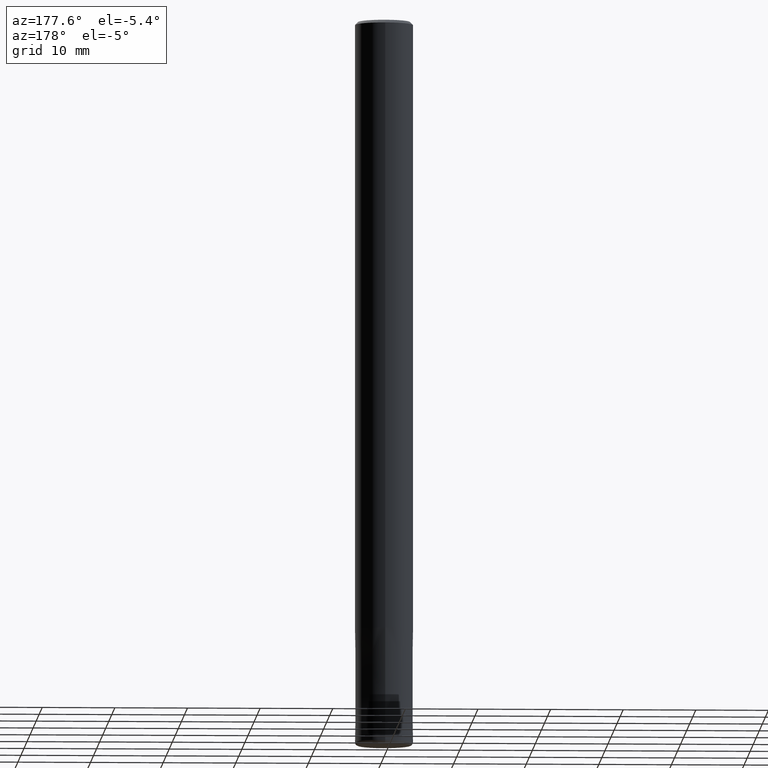
[diagram: clean part render]
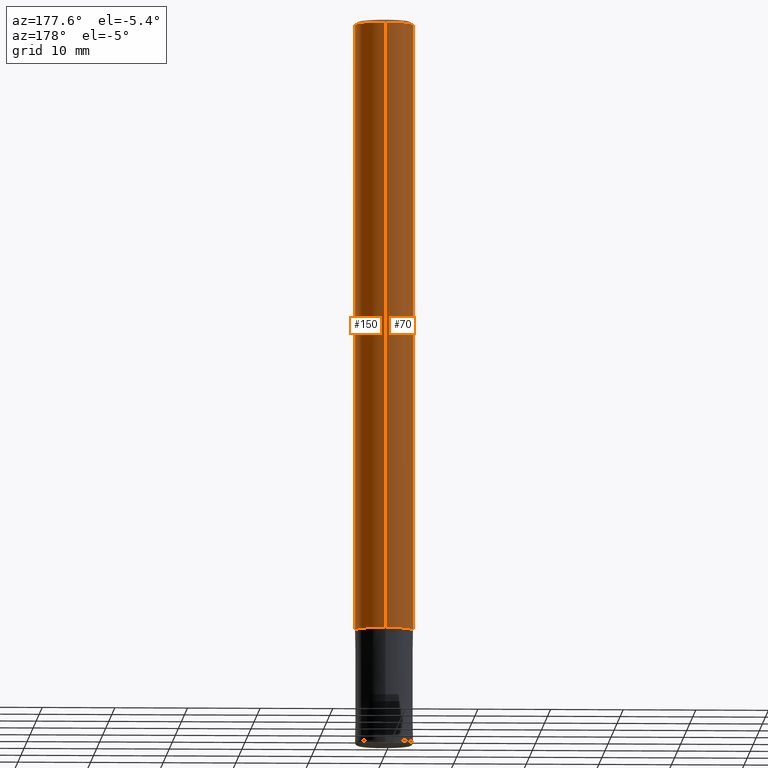
[diagram: same view with one multi-face feature highlighted, each face labeled with its STEP entity id]
A machine part, auxiliary view. The highlighted faces form ONE feature: a constant-radius fillet chain: 2 tangent blend faces with common blend radius 4 mm. The faces share edges in the B-rep.
Their STEP definitions:
[1] entity #150 (Cylinder):
#68=EDGE_CURVE('',#92,#152,#172,.T.);
#74=VERTEX_POINT('',#179);
#82=EDGE_CURVE('',#116,#74,#189,.T.);
#92=VERTEX_POINT('',#201);
#94=EDGE_CURVE('',#152,#116,#203,.T.);
#100=EDGE_CURVE('',#92,#74,#209,.T.);
#116=VERTEX_POINT('',#225);
#150=ADVANCED_FACE('',(#265),#266,.T.);
#152=VERTEX_POINT('',#268);
#172=LINE('',#279,#280);
#179=CARTESIAN_POINT('',(4.89842541528951E-016,-4.0,-0.400000000000006));
#189=LINE('',#299,#300);
#201=CARTESIAN_POINT('',(0.0,4.0,-0.400000000000006));
#203=CIRCLE('',#314,4.0);
#209=CIRCLE('',#322,4.0);
#225=CARTESIAN_POINT('',(4.89842541528951E-016,-4.0,-84.0));
#265=FACE_OUTER_BOUND('',#396,.T.);
#266=CYLINDRICAL_SURFACE('',#397,4.0);
#268=CARTESIAN_POINT('',(0.0,4.0,-84.0));
#279=CARTESIAN_POINT('',(-4.89842541528951E-016,4.0,-42.2));
#280=VECTOR('',#403,1.0);
#299=CARTESIAN_POINT('',(4.89842541528951E-016,-4.0,-42.2));
#300=VECTOR('',#431,1.0);
#314=AXIS2_PLACEMENT_3D('',#441,#442,#443);
#322=AXIS2_PLACEMENT_3D('',#447,#448,#449);
#396=EDGE_LOOP('',(#529,#530,#531,#532));
#397=AXIS2_PLACEMENT_3D('',#533,#534,#535);
#403=DIRECTION('',(0.0,0.0,-1.0));
#431=DIRECTION('',(-0.0,-0.0,1.0));
#441=CARTESIAN_POINT('',(0.0,0.0,-84.0));
#442=DIRECTION('',(0.0,0.0,-1.0));
#443=DIRECTION('',(0.0,1.0,0.0));
#447=CARTESIAN_POINT('',(0.0,0.0,-0.400000000000006));
#448=DIRECTION('',(0.0,0.0,-1.0));
#449=DIRECTION('',(0.0,1.0,0.0));
#529=ORIENTED_EDGE('',*,*,#68,.F.);
#530=ORIENTED_EDGE('',*,*,#100,.T.);
#531=ORIENTED_EDGE('',*,*,#82,.F.);
#532=ORIENTED_EDGE('',*,*,#94,.F.);
#533=CARTESIAN_POINT('',(0.0,0.0,-42.2));
#534=DIRECTION('',(-0.0,-0.0,1.0));
#535=DIRECTION('',(0.0,1.0,0.0));
[2] entity #70 (Cylinder):
#68=EDGE_CURVE('',#92,#152,#172,.T.);
#70=ADVANCED_FACE('',(#174),#175,.T.);
#74=VERTEX_POINT('',#179);
#82=EDGE_CURVE('',#116,#74,#189,.T.);
#92=VERTEX_POINT('',#201);
#106=EDGE_CURVE('',#116,#152,#215,.T.);
#116=VERTEX_POINT('',#225);
#128=EDGE_CURVE('',#74,#92,#239,.T.);
#152=VERTEX_POINT('',#268);
#172=LINE('',#279,#280);
#174=FACE_OUTER_BOUND('',#282,.T.);
#175=CYLINDRICAL_SURFACE('',#283,4.0);
#179=CARTESIAN_POINT('',(4.89842541528951E-016,-4.0,-0.400000000000006));
#189=LINE('',#299,#300);
#201=CARTESIAN_POINT('',(0.0,4.0,-0.400000000000006));
#215=CIRCLE('',#332,4.0);
#225=CARTESIAN_POINT('',(4.89842541528951E-016,-4.0,-84.0));
#239=CIRCLE('',#362,4.0);
#268=CARTESIAN_POINT('',(0.0,4.0,-84.0));
#279=CARTESIAN_POINT('',(-4.89842541528951E-016,4.0,-42.2));
#280=VECTOR('',#403,1.0);
#282=EDGE_LOOP('',(#405,#406,#407,#408));
#283=AXIS2_PLACEMENT_3D('',#409,#410,#411);
#299=CARTESIAN_POINT('',(4.89842541528951E-016,-4.0,-42.2));
#300=VECTOR('',#431,1.0);
#332=AXIS2_PLACEMENT_3D('',#454,#455,#456);
#362=AXIS2_PLACEMENT_3D('',#483,#484,#485);
#403=DIRECTION('',(0.0,0.0,-1.0));
#405=ORIENTED_EDGE('',*,*,#68,.T.);
#406=ORIENTED_EDGE('',*,*,#106,.F.);
#407=ORIENTED_EDGE('',*,*,#82,.T.);
#408=ORIENTED_EDGE('',*,*,#128,.T.);
#409=CARTESIAN_POINT('',(0.0,0.0,-42.2));
#410=DIRECTION('',(-0.0,-0.0,1.0));
#411=DIRECTION('',(0.0,1.0,0.0));
#431=DIRECTION('',(-0.0,-0.0,1.0));
#454=CARTESIAN_POINT('',(0.0,0.0,-84.0));
#455=DIRECTION('',(0.0,0.0,-1.0));
#456=DIRECTION('',(0.0,1.0,0.0));
#483=CARTESIAN_POINT('',(0.0,0.0,-0.400000000000006));
#484=DIRECTION('',(0.0,0.0,-1.0));
#485=DIRECTION('',(0.0,1.0,0.0));